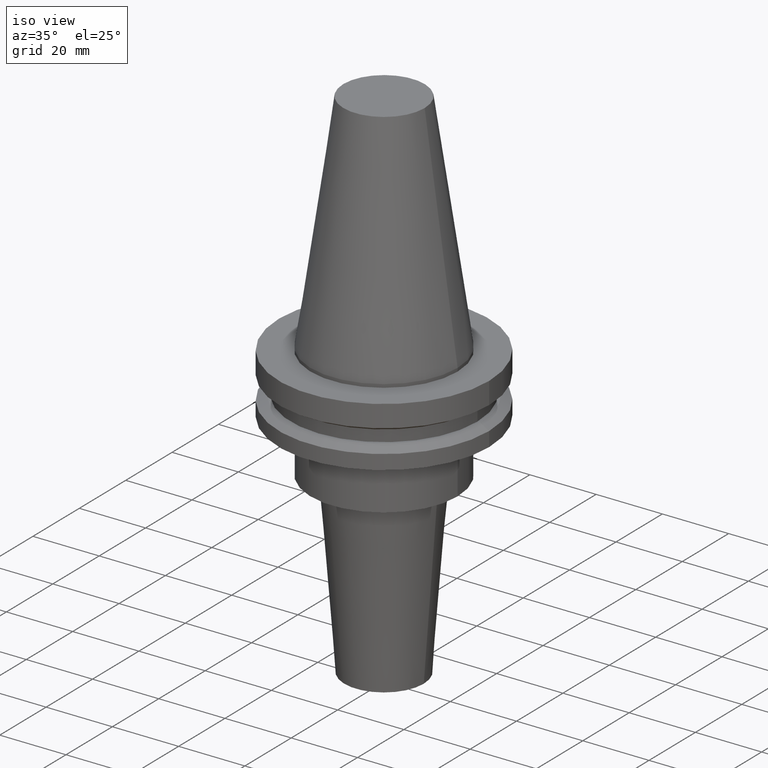
[diagram: clean part render]
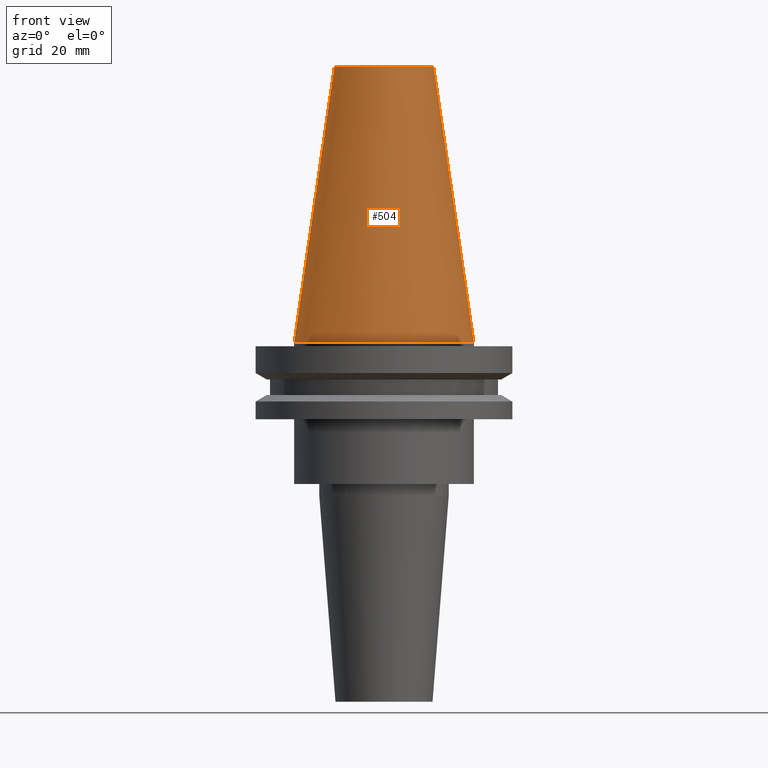
[diagram: tour spotlight — one face highlighted and labeled with its STEP entity id]
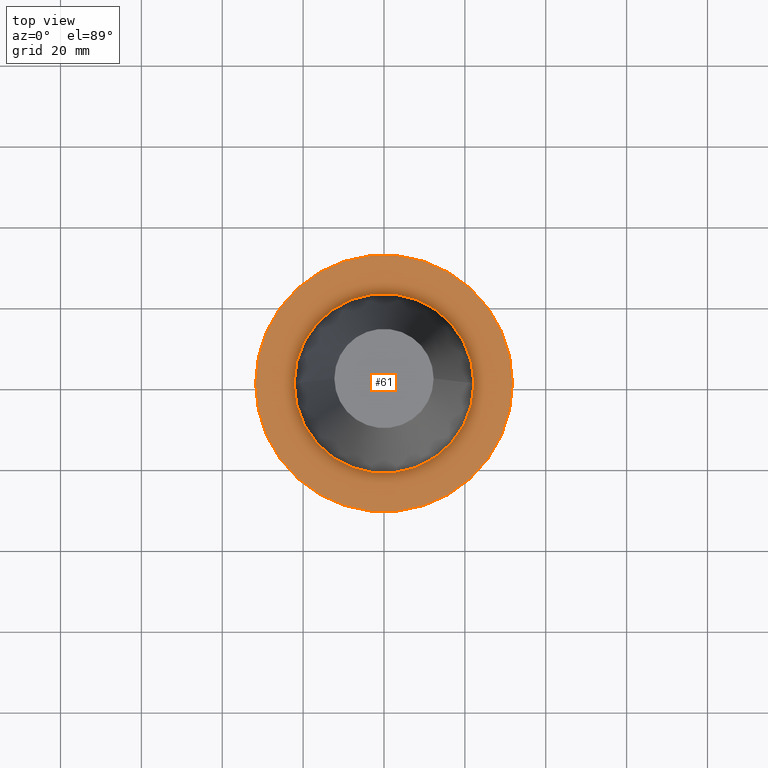
[diagram: tour spotlight — one face highlighted and labeled with its STEP entity id]
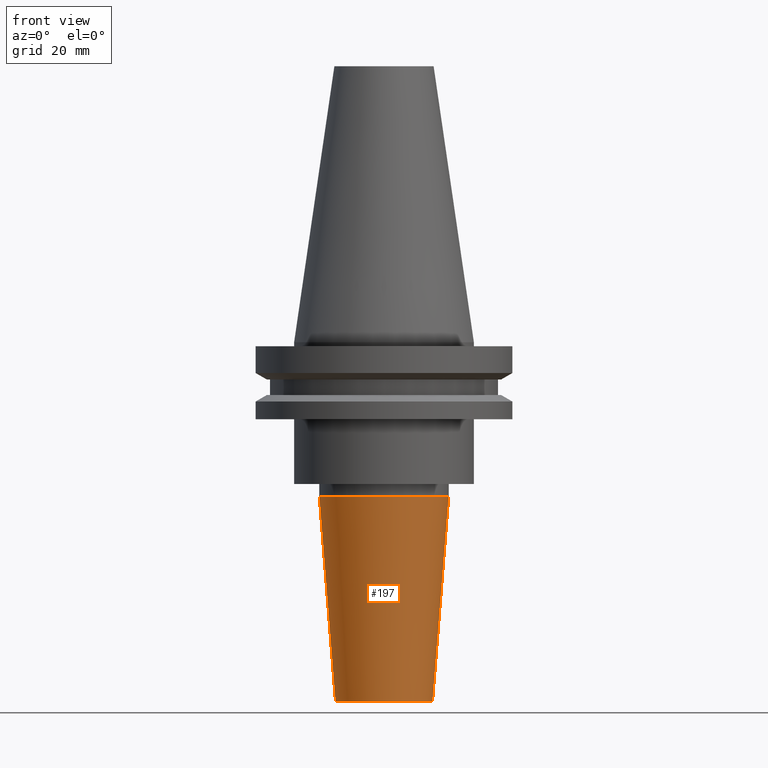
[diagram: tour spotlight — one face highlighted and labeled with its STEP entity id]
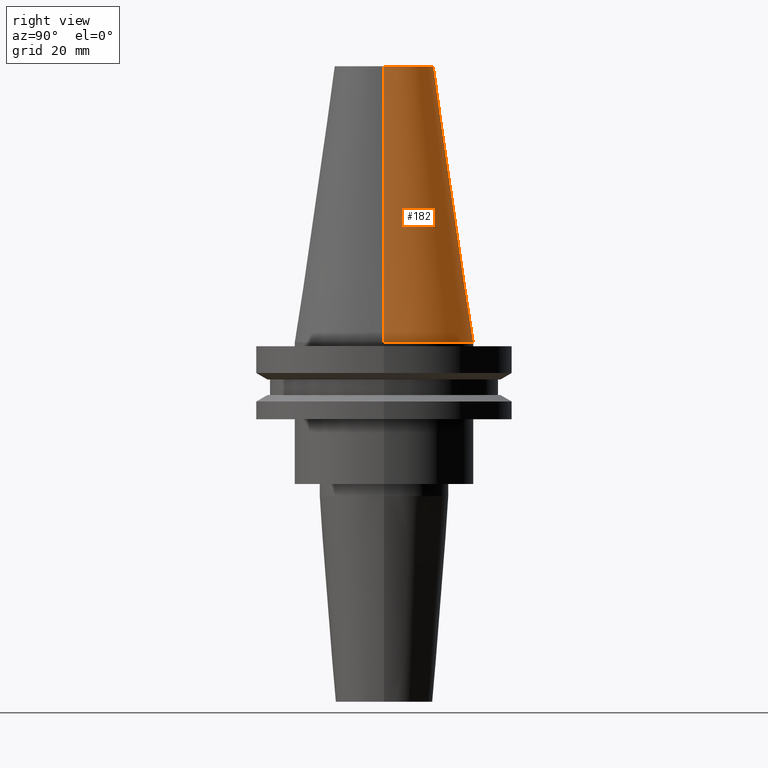
[diagram: tour spotlight — one face highlighted and labeled with its STEP entity id]
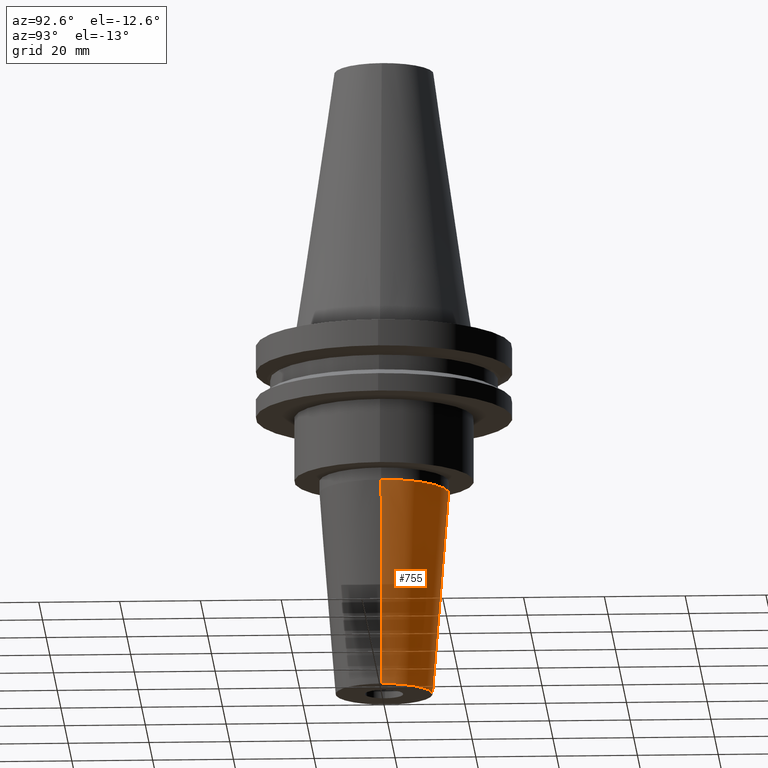
[diagram: tour spotlight — one face highlighted and labeled with its STEP entity id]
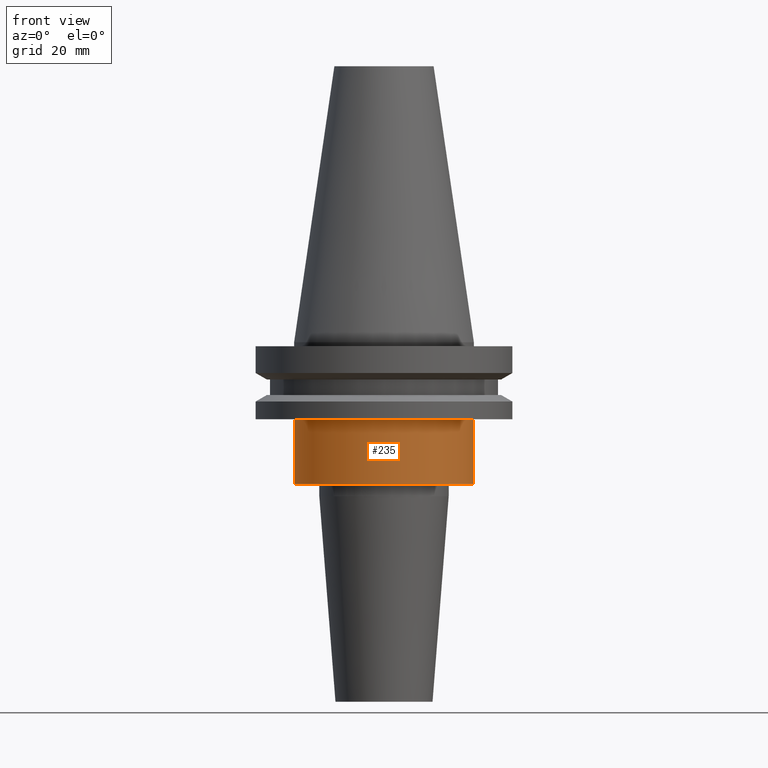
[diagram: tour spotlight — one face highlighted and labeled with its STEP entity id]
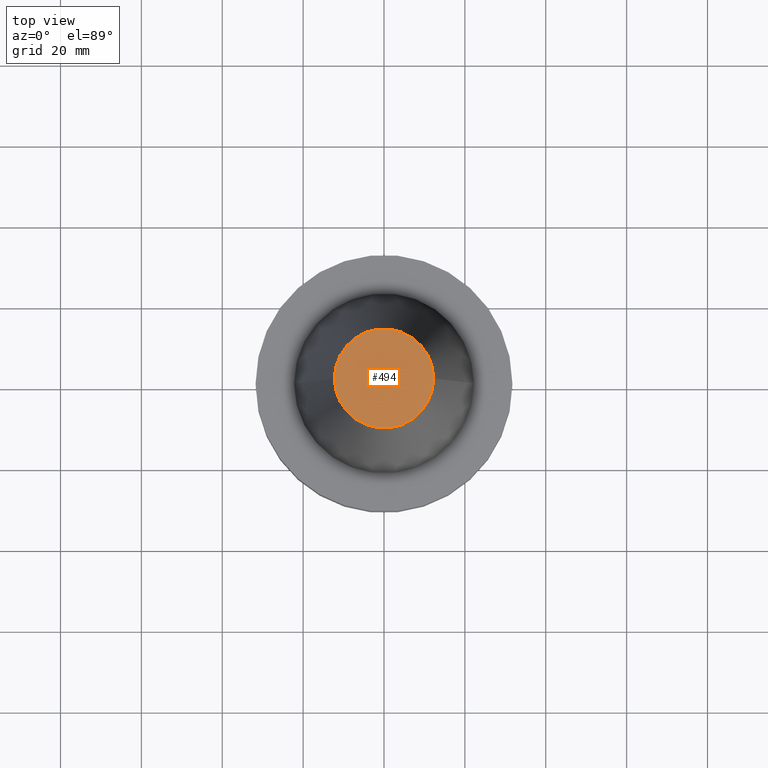
[diagram: tour spotlight — one face highlighted and labeled with its STEP entity id]
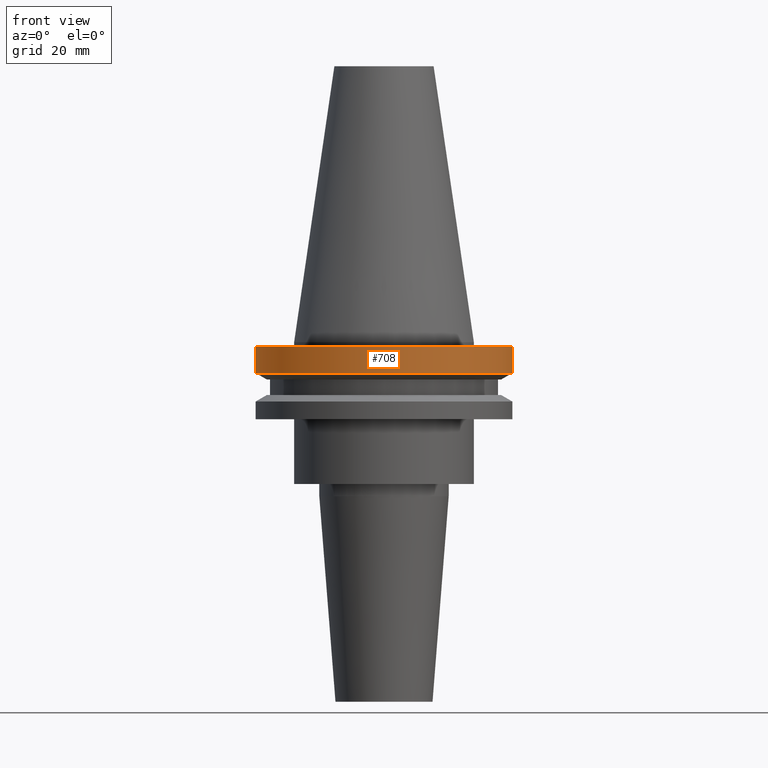
[diagram: tour spotlight — one face highlighted and labeled with its STEP entity id]
A machine part: a face-by-face anatomy tour. The part has 30 B-rep faces; the first image is the clean iso view, then the 8 largest visible faces are spotlighted one at a time (largest first), each with its STEP entity span.

Face 1 — front view, entity #504. In plain terms, the highlighted conical surface has half-angle 8.297 deg.
Definition (entity closure, byte-faithful):
#16 = ORIENTED_EDGE ( 'NONE', *, *, #608, .F. ) ;
#55 = AXIS2_PLACEMENT_3D ( 'NONE', #151, #303, #703 ) ;
#64 = CARTESIAN_POINT ( 'NONE',  ( 0.000000000000000000, 0.000000000000000000, 0.000000000000000000 ) ) ;
#68 = DIRECTION ( 'NONE',  ( -0.000000000000000000, -0.000000000000000000, 1.000000000000000000 ) ) ;
#87 = DIRECTION ( 'NONE',  ( 1.000000000000000000, 0.000000000000000000, 0.000000000000000000 ) ) ;
#139 = DIRECTION ( 'NONE',  ( -1.000000000000000000, 0.000000000000000000, 0.000000000000000000 ) ) ;
#151 = CARTESIAN_POINT ( 'NONE',  ( 0.000000000000000000, 0.000000000000000000, 68.25000000000000000 ) ) ;
#165 = EDGE_CURVE ( 'NONE', #814, #261, #429, .T. ) ;
#184 = ORIENTED_EDGE ( 'NONE', *, *, #832, .T. ) ;
#185 = AXIS2_PLACEMENT_3D ( 'NONE', #337, #542, #139 ) ;
#198 = CARTESIAN_POINT ( 'NONE',  ( -12.27178102086201150, 0.000000000000000000, 68.25000000000000000 ) ) ;
#210 = EDGE_CURVE ( 'NONE', #814, #342, #686, .T. ) ;
#231 = CONICAL_SURFACE ( 'NONE', #185, 22.22500000000000142, 0.1448138465474119174 ) ;
#236 = LINE ( 'NONE', #619, #797 ) ;
#261 = VERTEX_POINT ( 'NONE', #823 ) ;
#286 = EDGE_LOOP ( 'NONE', ( #16, #443, #381, #184 ) ) ;
#302 = DIRECTION ( 'NONE',  ( 0.1443082272672999711, 1.767266086135276757E-17, -0.9895327864921755756 ) ) ;
#303 = DIRECTION ( 'NONE',  ( -0.000000000000000000, -0.000000000000000000, 1.000000000000000000 ) ) ;
#308 = CARTESIAN_POINT ( 'NONE',  ( -22.22500000000000142, 0.000000000000000000, 0.000000000000000000 ) ) ;
#337 = CARTESIAN_POINT ( 'NONE',  ( 0.000000000000000000, 0.000000000000000000, 0.000000000000000000 ) ) ;
#342 = VERTEX_POINT ( 'NONE', #846 ) ;
#381 = ORIENTED_EDGE ( 'NONE', *, *, #210, .T. ) ;
#424 = CARTESIAN_POINT ( 'NONE',  ( 22.22500000000000142, 2.721777511104992849E-15, 0.000000000000000000 ) ) ;
#429 = CIRCLE ( 'NONE', #55, 12.27178102086201150 ) ;
#443 = ORIENTED_EDGE ( 'NONE', *, *, #165, .F. ) ;
#504 = ADVANCED_FACE ( 'NONE', ( #726 ), #231, .T. ) ;
#528 = AXIS2_PLACEMENT_3D ( 'NONE', #64, #68, #87 ) ;
#542 = DIRECTION ( 'NONE',  ( 0.000000000000000000, 0.000000000000000000, -1.000000000000000000 ) ) ;
#608 = EDGE_CURVE ( 'NONE', #261, #669, #236, .T. ) ;
#619 = CARTESIAN_POINT ( 'NONE',  ( 22.22500000000000142, 2.721777511104992849E-15, 0.000000000000000000 ) ) ;
#638 = DIRECTION ( 'NONE',  ( -0.1443082272672999711, 0.000000000000000000, -0.9895327864921755756 ) ) ;
#669 = VERTEX_POINT ( 'NONE', #424 ) ;
#686 = LINE ( 'NONE', #308, #781 ) ;
#703 = DIRECTION ( 'NONE',  ( 1.000000000000000000, 0.000000000000000000, 0.000000000000000000 ) ) ;
#726 = FACE_OUTER_BOUND ( 'NONE', #286, .T. ) ;
#781 = VECTOR ( 'NONE', #638, 999.9999999999998863 ) ;
#797 = VECTOR ( 'NONE', #302, 999.9999999999998863 ) ;
#814 = VERTEX_POINT ( 'NONE', #198 ) ;
#823 = CARTESIAN_POINT ( 'NONE',  ( 12.27178102086201150, 2.112318622904291439E-15, 68.25000000000000000 ) ) ;
#832 = EDGE_CURVE ( 'NONE', #342, #669, #842, .T. ) ;
#842 = CIRCLE ( 'NONE', #528, 22.22500000000000142 ) ;
#846 = CARTESIAN_POINT ( 'NONE',  ( -22.22500000000000142, 0.000000000000000000, 0.000000000000000000 ) ) ;

Face 2 — top view, entity #61. In plain terms, the highlighted planar face has unit normal (0, 0, -1).
Definition (entity closure, byte-faithful):
#12 = CIRCLE ( 'NONE', #123, 31.75000000000000000 ) ;
#19 = DIRECTION ( 'NONE',  ( 1.000000000000000000, 0.000000000000000000, 0.000000000000000000 ) ) ;
#31 = EDGE_CURVE ( 'NONE', #502, #784, #108, .T. ) ;
#46 = ORIENTED_EDGE ( 'NONE', *, *, #31, .F. ) ;
#61 = ADVANCED_FACE ( 'NONE', ( #333, #130 ), #676, .F. ) ;
#69 = AXIS2_PLACEMENT_3D ( 'NONE', #599, #464, #19 ) ;
#79 = CARTESIAN_POINT ( 'NONE',  ( -22.22500000000000142, 2.721777511104992849E-15, -1.000000000000000888 ) ) ;
#93 = DIRECTION ( 'NONE',  ( -0.000000000000000000, -0.000000000000000000, 1.000000000000000000 ) ) ;
#99 = VERTEX_POINT ( 'NONE', #480 ) ;
#108 = CIRCLE ( 'NONE', #69, 22.22500000000000142 ) ;
#123 = AXIS2_PLACEMENT_3D ( 'NONE', #490, #292, #573 ) ;
#126 = CARTESIAN_POINT ( 'NONE',  ( 0.000000000000000000, 0.000000000000000000, -1.000000000000000888 ) ) ;
#130 = FACE_OUTER_BOUND ( 'NONE', #683, .T. ) ;
#135 = ORIENTED_EDGE ( 'NONE', *, *, #594, .F. ) ;
#137 = CARTESIAN_POINT ( 'NONE',  ( -31.75000000000000000, 3.888253587292846476E-15, -1.000000000000000888 ) ) ;
#149 = ORIENTED_EDGE ( 'NONE', *, *, #288, .T. ) ;
#174 = CARTESIAN_POINT ( 'NONE',  ( 22.22500000000000142, 0.000000000000000000, -1.000000000000000888 ) ) ;
#288 = EDGE_CURVE ( 'NONE', #539, #99, #368, .T. ) ;
#291 = EDGE_LOOP ( 'NONE', ( #135, #46 ) ) ;
#292 = DIRECTION ( 'NONE',  ( -0.000000000000000000, -0.000000000000000000, 1.000000000000000000 ) ) ;
#326 = ORIENTED_EDGE ( 'NONE', *, *, #665, .T. ) ;
#333 = FACE_BOUND ( 'NONE', #291, .T. ) ;
#368 = CIRCLE ( 'NONE', #612, 31.75000000000000000 ) ;
#374 = DIRECTION ( 'NONE',  ( 1.000000000000000000, 0.000000000000000000, 0.000000000000000000 ) ) ;
#464 = DIRECTION ( 'NONE',  ( -0.000000000000000000, -0.000000000000000000, 1.000000000000000000 ) ) ;
#480 = CARTESIAN_POINT ( 'NONE',  ( 31.75000000000000000, 0.000000000000000000, -1.000000000000000888 ) ) ;
#486 = CIRCLE ( 'NONE', #541, 22.22500000000000142 ) ;
#490 = CARTESIAN_POINT ( 'NONE',  ( 0.000000000000000000, 0.000000000000000000, -1.000000000000000888 ) ) ;
#502 = VERTEX_POINT ( 'NONE', #79 ) ;
#539 = VERTEX_POINT ( 'NONE', #137 ) ;
#541 = AXIS2_PLACEMENT_3D ( 'NONE', #816, #93, #374 ) ;
#573 = DIRECTION ( 'NONE',  ( 1.000000000000000000, 0.000000000000000000, 0.000000000000000000 ) ) ;
#594 = EDGE_CURVE ( 'NONE', #784, #502, #486, .T. ) ;
#599 = CARTESIAN_POINT ( 'NONE',  ( 0.000000000000000000, 0.000000000000000000, -1.000000000000000888 ) ) ;
#602 = CARTESIAN_POINT ( 'NONE',  ( 0.000000000000000000, 31.75000000000000000, -0.9999999999999995559 ) ) ;
#612 = AXIS2_PLACEMENT_3D ( 'NONE', #126, #655, #712 ) ;
#655 = DIRECTION ( 'NONE',  ( -0.000000000000000000, -0.000000000000000000, 1.000000000000000000 ) ) ;
#665 = EDGE_CURVE ( 'NONE', #99, #539, #12, .T. ) ;
#673 = DIRECTION ( 'NONE',  ( 0.000000000000000000, 0.000000000000000000, -1.000000000000000000 ) ) ;
#676 = PLANE ( 'NONE',  #705 ) ;
#683 = EDGE_LOOP ( 'NONE', ( #326, #149 ) ) ;
#705 = AXIS2_PLACEMENT_3D ( 'NONE', #602, #673, #741 ) ;
#712 = DIRECTION ( 'NONE',  ( 1.000000000000000000, 0.000000000000000000, 0.000000000000000000 ) ) ;
#741 = DIRECTION ( 'NONE',  ( -1.000000000000000000, 0.000000000000000000, -0.000000000000000000 ) ) ;
#784 = VERTEX_POINT ( 'NONE', #174 ) ;
#816 = CARTESIAN_POINT ( 'NONE',  ( 0.000000000000000000, 0.000000000000000000, -1.000000000000000888 ) ) ;

Face 3 — front view, entity #197. In plain terms, the highlighted conical surface has half-angle 4.5 deg.
Definition (entity closure, byte-faithful):
#14 = LINE ( 'NONE', #468, #513 ) ;
#62 = DIRECTION ( 'NONE',  ( 1.000000000000000000, 0.000000000000000000, 0.000000000000000000 ) ) ;
#86 = VERTEX_POINT ( 'NONE', #401 ) ;
#114 = CIRCLE ( 'NONE', #335, 12.00000000000000000 ) ;
#128 = EDGE_CURVE ( 'NONE', #86, #219, #14, .T. ) ;
#131 = CONICAL_SURFACE ( 'NONE', #278, 12.00000000000000000, 0.07853981633973657062 ) ;
#153 = VERTEX_POINT ( 'NONE', #564 ) ;
#161 = CARTESIAN_POINT ( 'NONE',  ( -16.00000000000000000, 1.959434878635765131E-15, -38.07518105529580055 ) ) ;
#175 = DIRECTION ( 'NONE',  ( -0.000000000000000000, -0.000000000000000000, 1.000000000000000000 ) ) ;
#193 = ORIENTED_EDGE ( 'NONE', *, *, #417, .F. ) ;
#197 = ADVANCED_FACE ( 'NONE', ( #491 ), #131, .T. ) ;
#202 = ORIENTED_EDGE ( 'NONE', *, *, #411, .T. ) ;
#219 = VERTEX_POINT ( 'NONE', #161 ) ;
#260 = CARTESIAN_POINT ( 'NONE',  ( 12.00000000000000000, 0.000000000000000000, -88.89999999999999147 ) ) ;
#278 = AXIS2_PLACEMENT_3D ( 'NONE', #487, #626, #689 ) ;
#321 = LINE ( 'NONE', #260, #774 ) ;
#323 = EDGE_CURVE ( 'NONE', #86, #153, #114, .T. ) ;
#335 = AXIS2_PLACEMENT_3D ( 'NONE', #458, #175, #62 ) ;
#345 = DIRECTION ( 'NONE',  ( -0.07845909572783671404, 9.608468044709101226E-18, 0.9969173337331286300 ) ) ;
#350 = AXIS2_PLACEMENT_3D ( 'NONE', #449, #444, #510 ) ;
#401 = CARTESIAN_POINT ( 'NONE',  ( -12.00000000000000000, 1.714505518806294638E-15, -88.89999999999999147 ) ) ;
#411 = EDGE_CURVE ( 'NONE', #153, #819, #321, .T. ) ;
#417 = EDGE_CURVE ( 'NONE', #219, #819, #506, .T. ) ;
#444 = DIRECTION ( 'NONE',  ( -0.000000000000000000, -0.000000000000000000, 1.000000000000000000 ) ) ;
#449 = CARTESIAN_POINT ( 'NONE',  ( 0.000000000000000000, 0.000000000000000000, -38.07518105529580055 ) ) ;
#458 = CARTESIAN_POINT ( 'NONE',  ( 0.000000000000000000, 0.000000000000000000, -88.89999999999999147 ) ) ;
#468 = CARTESIAN_POINT ( 'NONE',  ( -12.00000000000000000, 1.469576158976823947E-15, -88.89999999999999147 ) ) ;
#487 = CARTESIAN_POINT ( 'NONE',  ( 0.000000000000000000, 0.000000000000000000, -88.89999999999999147 ) ) ;
#491 = FACE_OUTER_BOUND ( 'NONE', #769, .T. ) ;
#506 = CIRCLE ( 'NONE', #350, 16.00000000000000000 ) ;
#510 = DIRECTION ( 'NONE',  ( 1.000000000000000000, 0.000000000000000000, 0.000000000000000000 ) ) ;
#513 = VECTOR ( 'NONE', #345, 1000.000000000000000 ) ;
#514 = DIRECTION ( 'NONE',  ( 0.07845909572783671404, 0.000000000000000000, 0.9969173337331286300 ) ) ;
#564 = CARTESIAN_POINT ( 'NONE',  ( 12.00000000000000000, 0.000000000000000000, -88.89999999999999147 ) ) ;
#626 = DIRECTION ( 'NONE',  ( -0.000000000000000000, -0.000000000000000000, 1.000000000000000000 ) ) ;
#649 = ORIENTED_EDGE ( 'NONE', *, *, #128, .F. ) ;
#689 = DIRECTION ( 'NONE',  ( 1.000000000000000000, 0.000000000000000000, 0.000000000000000000 ) ) ;
#719 = CARTESIAN_POINT ( 'NONE',  ( 16.00000000000000000, 0.000000000000000000, -38.07518105529580055 ) ) ;
#769 = EDGE_LOOP ( 'NONE', ( #649, #779, #202, #193 ) ) ;
#774 = VECTOR ( 'NONE', #514, 1000.000000000000000 ) ;
#779 = ORIENTED_EDGE ( 'NONE', *, *, #323, .T. ) ;
#819 = VERTEX_POINT ( 'NONE', #719 ) ;

Face 4 — right view, entity #182. In plain terms, the highlighted conical surface has half-angle 8.297 deg.
Definition (entity closure, byte-faithful):
#4 = ORIENTED_EDGE ( 'NONE', *, *, #646, .T. ) ;
#39 = DIRECTION ( 'NONE',  ( 1.000000000000000000, 0.000000000000000000, 0.000000000000000000 ) ) ;
#106 = CARTESIAN_POINT ( 'NONE',  ( 0.000000000000000000, 0.000000000000000000, 68.25000000000000000 ) ) ;
#143 = CIRCLE ( 'NONE', #262, 12.27178102086201150 ) ;
#182 = ADVANCED_FACE ( 'NONE', ( #362 ), #402, .T. ) ;
#198 = CARTESIAN_POINT ( 'NONE',  ( -12.27178102086201150, 0.000000000000000000, 68.25000000000000000 ) ) ;
#210 = EDGE_CURVE ( 'NONE', #814, #342, #686, .T. ) ;
#222 = CARTESIAN_POINT ( 'NONE',  ( 0.000000000000000000, 0.000000000000000000, 0.000000000000000000 ) ) ;
#236 = LINE ( 'NONE', #619, #797 ) ;
#237 = DIRECTION ( 'NONE',  ( -0.000000000000000000, -0.000000000000000000, 1.000000000000000000 ) ) ;
#261 = VERTEX_POINT ( 'NONE', #823 ) ;
#262 = AXIS2_PLACEMENT_3D ( 'NONE', #106, #237, #39 ) ;
#266 = EDGE_CURVE ( 'NONE', #261, #814, #143, .T. ) ;
#293 = DIRECTION ( 'NONE',  ( -1.000000000000000000, 0.000000000000000000, 0.000000000000000000 ) ) ;
#296 = DIRECTION ( 'NONE',  ( -0.000000000000000000, -0.000000000000000000, 1.000000000000000000 ) ) ;
#302 = DIRECTION ( 'NONE',  ( 0.1443082272672999711, 1.767266086135276757E-17, -0.9895327864921755756 ) ) ;
#308 = CARTESIAN_POINT ( 'NONE',  ( -22.22500000000000142, 0.000000000000000000, 0.000000000000000000 ) ) ;
#334 = ORIENTED_EDGE ( 'NONE', *, *, #266, .F. ) ;
#342 = VERTEX_POINT ( 'NONE', #846 ) ;
#344 = CIRCLE ( 'NONE', #855, 22.22500000000000142 ) ;
#362 = FACE_OUTER_BOUND ( 'NONE', #550, .T. ) ;
#402 = CONICAL_SURFACE ( 'NONE', #483, 22.22500000000000142, 0.1448138465474119174 ) ;
#424 = CARTESIAN_POINT ( 'NONE',  ( 22.22500000000000142, 2.721777511104992849E-15, 0.000000000000000000 ) ) ;
#483 = AXIS2_PLACEMENT_3D ( 'NONE', #580, #633, #293 ) ;
#493 = ORIENTED_EDGE ( 'NONE', *, *, #608, .T. ) ;
#550 = EDGE_LOOP ( 'NONE', ( #334, #493, #4, #787 ) ) ;
#567 = DIRECTION ( 'NONE',  ( 1.000000000000000000, 0.000000000000000000, 0.000000000000000000 ) ) ;
#580 = CARTESIAN_POINT ( 'NONE',  ( 0.000000000000000000, 0.000000000000000000, 0.000000000000000000 ) ) ;
#608 = EDGE_CURVE ( 'NONE', #261, #669, #236, .T. ) ;
#619 = CARTESIAN_POINT ( 'NONE',  ( 22.22500000000000142, 2.721777511104992849E-15, 0.000000000000000000 ) ) ;
#633 = DIRECTION ( 'NONE',  ( 0.000000000000000000, 0.000000000000000000, -1.000000000000000000 ) ) ;
#638 = DIRECTION ( 'NONE',  ( -0.1443082272672999711, 0.000000000000000000, -0.9895327864921755756 ) ) ;
#646 = EDGE_CURVE ( 'NONE', #669, #342, #344, .T. ) ;
#669 = VERTEX_POINT ( 'NONE', #424 ) ;
#686 = LINE ( 'NONE', #308, #781 ) ;
#781 = VECTOR ( 'NONE', #638, 999.9999999999998863 ) ;
#787 = ORIENTED_EDGE ( 'NONE', *, *, #210, .F. ) ;
#797 = VECTOR ( 'NONE', #302, 999.9999999999998863 ) ;
#814 = VERTEX_POINT ( 'NONE', #198 ) ;
#823 = CARTESIAN_POINT ( 'NONE',  ( 12.27178102086201150, 2.112318622904291439E-15, 68.25000000000000000 ) ) ;
#846 = CARTESIAN_POINT ( 'NONE',  ( -22.22500000000000142, 0.000000000000000000, 0.000000000000000000 ) ) ;
#855 = AXIS2_PLACEMENT_3D ( 'NONE', #222, #296, #567 ) ;

Face 5 — auxiliary view, entity #755. In plain terms, the highlighted conical surface has half-angle 4.5 deg.
Definition (entity closure, byte-faithful):
#14 = LINE ( 'NONE', #468, #513 ) ;
#22 = AXIS2_PLACEMENT_3D ( 'NONE', #370, #28, #299 ) ;
#28 = DIRECTION ( 'NONE',  ( -0.000000000000000000, -0.000000000000000000, 1.000000000000000000 ) ) ;
#66 = CARTESIAN_POINT ( 'NONE',  ( 0.000000000000000000, 0.000000000000000000, -88.89999999999999147 ) ) ;
#86 = VERTEX_POINT ( 'NONE', #401 ) ;
#116 = ORIENTED_EDGE ( 'NONE', *, *, #190, .F. ) ;
#118 = CARTESIAN_POINT ( 'NONE',  ( 0.000000000000000000, 0.000000000000000000, -88.89999999999999147 ) ) ;
#128 = EDGE_CURVE ( 'NONE', #86, #219, #14, .T. ) ;
#150 = FACE_OUTER_BOUND ( 'NONE', #700, .T. ) ;
#153 = VERTEX_POINT ( 'NONE', #564 ) ;
#161 = CARTESIAN_POINT ( 'NONE',  ( -16.00000000000000000, 1.959434878635765131E-15, -38.07518105529580055 ) ) ;
#190 = EDGE_CURVE ( 'NONE', #819, #219, #572, .T. ) ;
#205 = CONICAL_SURFACE ( 'NONE', #827, 12.00000000000000000, 0.07853981633973657062 ) ;
#219 = VERTEX_POINT ( 'NONE', #161 ) ;
#249 = DIRECTION ( 'NONE',  ( -0.000000000000000000, -0.000000000000000000, 1.000000000000000000 ) ) ;
#260 = CARTESIAN_POINT ( 'NONE',  ( 12.00000000000000000, 0.000000000000000000, -88.89999999999999147 ) ) ;
#267 = ORIENTED_EDGE ( 'NONE', *, *, #411, .F. ) ;
#299 = DIRECTION ( 'NONE',  ( 1.000000000000000000, 0.000000000000000000, 0.000000000000000000 ) ) ;
#304 = ORIENTED_EDGE ( 'NONE', *, *, #432, .T. ) ;
#321 = LINE ( 'NONE', #260, #774 ) ;
#328 = DIRECTION ( 'NONE',  ( 1.000000000000000000, 0.000000000000000000, 0.000000000000000000 ) ) ;
#345 = DIRECTION ( 'NONE',  ( -0.07845909572783671404, 9.608468044709101226E-18, 0.9969173337331286300 ) ) ;
#370 = CARTESIAN_POINT ( 'NONE',  ( 0.000000000000000000, 0.000000000000000000, -38.07518105529580055 ) ) ;
#385 = DIRECTION ( 'NONE',  ( -0.000000000000000000, -0.000000000000000000, 1.000000000000000000 ) ) ;
#397 = AXIS2_PLACEMENT_3D ( 'NONE', #66, #385, #328 ) ;
#401 = CARTESIAN_POINT ( 'NONE',  ( -12.00000000000000000, 1.714505518806294638E-15, -88.89999999999999147 ) ) ;
#411 = EDGE_CURVE ( 'NONE', #153, #819, #321, .T. ) ;
#432 = EDGE_CURVE ( 'NONE', #153, #86, #546, .T. ) ;
#468 = CARTESIAN_POINT ( 'NONE',  ( -12.00000000000000000, 1.469576158976823947E-15, -88.89999999999999147 ) ) ;
#482 = ORIENTED_EDGE ( 'NONE', *, *, #128, .T. ) ;
#513 = VECTOR ( 'NONE', #345, 1000.000000000000000 ) ;
#514 = DIRECTION ( 'NONE',  ( 0.07845909572783671404, 0.000000000000000000, 0.9969173337331286300 ) ) ;
#546 = CIRCLE ( 'NONE', #397, 12.00000000000000000 ) ;
#564 = CARTESIAN_POINT ( 'NONE',  ( 12.00000000000000000, 0.000000000000000000, -88.89999999999999147 ) ) ;
#572 = CIRCLE ( 'NONE', #22, 16.00000000000000000 ) ;
#700 = EDGE_LOOP ( 'NONE', ( #304, #482, #116, #267 ) ) ;
#714 = DIRECTION ( 'NONE',  ( 1.000000000000000000, 0.000000000000000000, 0.000000000000000000 ) ) ;
#719 = CARTESIAN_POINT ( 'NONE',  ( 16.00000000000000000, 0.000000000000000000, -38.07518105529580055 ) ) ;
#755 = ADVANCED_FACE ( 'NONE', ( #150 ), #205, .T. ) ;
#774 = VECTOR ( 'NONE', #514, 1000.000000000000000 ) ;
#819 = VERTEX_POINT ( 'NONE', #719 ) ;
#827 = AXIS2_PLACEMENT_3D ( 'NONE', #118, #249, #714 ) ;

Face 6 — front view, entity #235. In plain terms, the highlighted cylindrical surface (partial cylindrical patch) has radius 22.225 mm, axis along (-0, -0, 1).
Definition (entity closure, byte-faithful):
#45 = FACE_OUTER_BOUND ( 'NONE', #452, .T. ) ;
#50 = VERTEX_POINT ( 'NONE', #534 ) ;
#56 = CIRCLE ( 'NONE', #540, 22.22500000000000142 ) ;
#98 = CARTESIAN_POINT ( 'NONE',  ( -22.22500000000000142, 2.721777511104992849E-15, 68.25000000000000000 ) ) ;
#101 = DIRECTION ( 'NONE',  ( 1.000000000000000000, 0.000000000000000000, 0.000000000000000000 ) ) ;
#156 = CARTESIAN_POINT ( 'NONE',  ( -22.22499999999999787, 2.721777511104992454E-15, -35.04999999999999716 ) ) ;
#158 = ORIENTED_EDGE ( 'NONE', *, *, #848, .T. ) ;
#188 = VECTOR ( 'NONE', #375, 1000.000000000000000 ) ;
#216 = VERTEX_POINT ( 'NONE', #433 ) ;
#235 = ADVANCED_FACE ( 'NONE', ( #45 ), #694, .T. ) ;
#251 = EDGE_CURVE ( 'NONE', #657, #216, #830, .T. ) ;
#283 = ORIENTED_EDGE ( 'NONE', *, *, #682, .T. ) ;
#289 = DIRECTION ( 'NONE',  ( -0.000000000000000000, -0.000000000000000000, 1.000000000000000000 ) ) ;
#307 = AXIS2_PLACEMENT_3D ( 'NONE', #356, #748, #441 ) ;
#327 = LINE ( 'NONE', #532, #363 ) ;
#356 = CARTESIAN_POINT ( 'NONE',  ( 0.000000000000000000, 0.000000000000000000, 68.25000000000000000 ) ) ;
#363 = VECTOR ( 'NONE', #597, 1000.000000000000000 ) ;
#375 = DIRECTION ( 'NONE',  ( -0.000000000000000000, -0.000000000000000000, 1.000000000000000000 ) ) ;
#422 = DIRECTION ( 'NONE',  ( -0.000000000000000000, -0.000000000000000000, 1.000000000000000000 ) ) ;
#426 = VERTEX_POINT ( 'NONE', #589 ) ;
#433 = CARTESIAN_POINT ( 'NONE',  ( -22.22500000000000142, 2.721777511104992849E-15, -19.04999999999999716 ) ) ;
#441 = DIRECTION ( 'NONE',  ( 1.000000000000000000, 0.000000000000000000, 0.000000000000000000 ) ) ;
#452 = EDGE_LOOP ( 'NONE', ( #613, #283, #158, #766 ) ) ;
#532 = CARTESIAN_POINT ( 'NONE',  ( 22.22500000000000142, 0.000000000000000000, 68.25000000000000000 ) ) ;
#534 = CARTESIAN_POINT ( 'NONE',  ( 22.22499999999999787, 0.000000000000000000, -35.04999999999999716 ) ) ;
#540 = AXIS2_PLACEMENT_3D ( 'NONE', #811, #422, #677 ) ;
#589 = CARTESIAN_POINT ( 'NONE',  ( 22.22500000000000142, 0.000000000000000000, -19.04999999999999716 ) ) ;
#597 = DIRECTION ( 'NONE',  ( -0.000000000000000000, -0.000000000000000000, 1.000000000000000000 ) ) ;
#613 = ORIENTED_EDGE ( 'NONE', *, *, #251, .F. ) ;
#625 = CARTESIAN_POINT ( 'NONE',  ( 0.000000000000000000, 0.000000000000000000, -35.04999999999999716 ) ) ;
#657 = VERTEX_POINT ( 'NONE', #156 ) ;
#677 = DIRECTION ( 'NONE',  ( 1.000000000000000000, 0.000000000000000000, 0.000000000000000000 ) ) ;
#682 = EDGE_CURVE ( 'NONE', #657, #50, #785, .T. ) ;
#694 = CYLINDRICAL_SURFACE ( 'NONE', #307, 22.22500000000000142 ) ;
#748 = DIRECTION ( 'NONE',  ( -0.000000000000000000, -0.000000000000000000, 1.000000000000000000 ) ) ;
#766 = ORIENTED_EDGE ( 'NONE', *, *, #818, .F. ) ;
#785 = CIRCLE ( 'NONE', #828, 22.22499999999999787 ) ;
#811 = CARTESIAN_POINT ( 'NONE',  ( 0.000000000000000000, 0.000000000000000000, -19.04999999999999716 ) ) ;
#818 = EDGE_CURVE ( 'NONE', #216, #426, #56, .T. ) ;
#828 = AXIS2_PLACEMENT_3D ( 'NONE', #625, #289, #101 ) ;
#830 = LINE ( 'NONE', #98, #188 ) ;
#848 = EDGE_CURVE ( 'NONE', #50, #426, #327, .T. ) ;

Face 7 — top view, entity #494. In plain terms, the highlighted planar face has unit normal (0, 0, -1).
Definition (entity closure, byte-faithful):
#39 = DIRECTION ( 'NONE',  ( 1.000000000000000000, 0.000000000000000000, 0.000000000000000000 ) ) ;
#55 = AXIS2_PLACEMENT_3D ( 'NONE', #151, #303, #703 ) ;
#84 = PLANE ( 'NONE',  #833 ) ;
#106 = CARTESIAN_POINT ( 'NONE',  ( 0.000000000000000000, 0.000000000000000000, 68.25000000000000000 ) ) ;
#143 = CIRCLE ( 'NONE', #262, 12.27178102086201150 ) ;
#151 = CARTESIAN_POINT ( 'NONE',  ( 0.000000000000000000, 0.000000000000000000, 68.25000000000000000 ) ) ;
#165 = EDGE_CURVE ( 'NONE', #814, #261, #429, .T. ) ;
#198 = CARTESIAN_POINT ( 'NONE',  ( -12.27178102086201150, 0.000000000000000000, 68.25000000000000000 ) ) ;
#214 = DIRECTION ( 'NONE',  ( 0.000000000000000000, 0.000000000000000000, -1.000000000000000000 ) ) ;
#237 = DIRECTION ( 'NONE',  ( -0.000000000000000000, -0.000000000000000000, 1.000000000000000000 ) ) ;
#261 = VERTEX_POINT ( 'NONE', #823 ) ;
#262 = AXIS2_PLACEMENT_3D ( 'NONE', #106, #237, #39 ) ;
#266 = EDGE_CURVE ( 'NONE', #261, #814, #143, .T. ) ;
#273 = CARTESIAN_POINT ( 'NONE',  ( 0.000000000000000000, 12.27178102086201150, 68.25000000000000000 ) ) ;
#303 = DIRECTION ( 'NONE',  ( -0.000000000000000000, -0.000000000000000000, 1.000000000000000000 ) ) ;
#429 = CIRCLE ( 'NONE', #55, 12.27178102086201150 ) ;
#476 = ORIENTED_EDGE ( 'NONE', *, *, #266, .T. ) ;
#494 = ADVANCED_FACE ( 'NONE', ( #662 ), #84, .F. ) ;
#662 = FACE_OUTER_BOUND ( 'NONE', #835, .T. ) ;
#680 = DIRECTION ( 'NONE',  ( -1.000000000000000000, 0.000000000000000000, -0.000000000000000000 ) ) ;
#703 = DIRECTION ( 'NONE',  ( 1.000000000000000000, 0.000000000000000000, 0.000000000000000000 ) ) ;
#814 = VERTEX_POINT ( 'NONE', #198 ) ;
#823 = CARTESIAN_POINT ( 'NONE',  ( 12.27178102086201150, 2.112318622904291439E-15, 68.25000000000000000 ) ) ;
#833 = AXIS2_PLACEMENT_3D ( 'NONE', #273, #214, #680 ) ;
#835 = EDGE_LOOP ( 'NONE', ( #847, #476 ) ) ;
#847 = ORIENTED_EDGE ( 'NONE', *, *, #165, .T. ) ;

Face 8 — front view, entity #708. In plain terms, the highlighted cylindrical surface (partial cylindrical patch) has radius 31.75 mm, axis along (-0, -0, 1).
Definition (entity closure, byte-faithful):
#99 = VERTEX_POINT ( 'NONE', #480 ) ;
#126 = CARTESIAN_POINT ( 'NONE',  ( 0.000000000000000000, 0.000000000000000000, -1.000000000000000888 ) ) ;
#137 = CARTESIAN_POINT ( 'NONE',  ( -31.75000000000000000, 3.888253587292846476E-15, -1.000000000000000888 ) ) ;
#176 = EDGE_LOOP ( 'NONE', ( #271, #717, #309, #300 ) ) ;
#179 = CARTESIAN_POINT ( 'NONE',  ( 31.75000000000000000, 0.000000000000000000, -7.605276606597335842 ) ) ;
#189 = AXIS2_PLACEMENT_3D ( 'NONE', #747, #361, #812 ) ;
#191 = VECTOR ( 'NONE', #200, 1000.000000000000000 ) ;
#200 = DIRECTION ( 'NONE',  ( -0.000000000000000000, -0.000000000000000000, 1.000000000000000000 ) ) ;
#213 = EDGE_CURVE ( 'NONE', #776, #99, #496, .T. ) ;
#271 = ORIENTED_EDGE ( 'NONE', *, *, #561, .F. ) ;
#288 = EDGE_CURVE ( 'NONE', #539, #99, #368, .T. ) ;
#300 = ORIENTED_EDGE ( 'NONE', *, *, #288, .F. ) ;
#309 = ORIENTED_EDGE ( 'NONE', *, *, #213, .T. ) ;
#322 = CIRCLE ( 'NONE', #763, 31.75000000000000000 ) ;
#332 = CARTESIAN_POINT ( 'NONE',  ( -31.75000000000000000, 3.888253587292846476E-15, 68.25000000000000000 ) ) ;
#359 = VECTOR ( 'NONE', #752, 1000.000000000000000 ) ;
#361 = DIRECTION ( 'NONE',  ( -0.000000000000000000, -0.000000000000000000, 1.000000000000000000 ) ) ;
#368 = CIRCLE ( 'NONE', #612, 31.75000000000000000 ) ;
#410 = DIRECTION ( 'NONE',  ( -0.000000000000000000, -0.000000000000000000, 1.000000000000000000 ) ) ;
#467 = CARTESIAN_POINT ( 'NONE',  ( 0.000000000000000000, 0.000000000000000000, -7.605276606597335842 ) ) ;
#475 = LINE ( 'NONE', #332, #191 ) ;
#480 = CARTESIAN_POINT ( 'NONE',  ( 31.75000000000000000, 0.000000000000000000, -1.000000000000000888 ) ) ;
#492 = EDGE_CURVE ( 'NONE', #590, #776, #322, .T. ) ;
#496 = LINE ( 'NONE', #813, #359 ) ;
#533 = CARTESIAN_POINT ( 'NONE',  ( -31.75000000000000000, 3.888253587292846476E-15, -7.605276606597335842 ) ) ;
#539 = VERTEX_POINT ( 'NONE', #137 ) ;
#548 = DIRECTION ( 'NONE',  ( 1.000000000000000000, 0.000000000000000000, 0.000000000000000000 ) ) ;
#561 = EDGE_CURVE ( 'NONE', #590, #539, #475, .T. ) ;
#590 = VERTEX_POINT ( 'NONE', #533 ) ;
#612 = AXIS2_PLACEMENT_3D ( 'NONE', #126, #655, #712 ) ;
#655 = DIRECTION ( 'NONE',  ( -0.000000000000000000, -0.000000000000000000, 1.000000000000000000 ) ) ;
#698 = CYLINDRICAL_SURFACE ( 'NONE', #189, 31.75000000000000000 ) ;
#708 = ADVANCED_FACE ( 'NONE', ( #758 ), #698, .T. ) ;
#712 = DIRECTION ( 'NONE',  ( 1.000000000000000000, 0.000000000000000000, 0.000000000000000000 ) ) ;
#717 = ORIENTED_EDGE ( 'NONE', *, *, #492, .T. ) ;
#747 = CARTESIAN_POINT ( 'NONE',  ( 0.000000000000000000, 0.000000000000000000, 68.25000000000000000 ) ) ;
#752 = DIRECTION ( 'NONE',  ( -0.000000000000000000, -0.000000000000000000, 1.000000000000000000 ) ) ;
#758 = FACE_OUTER_BOUND ( 'NONE', #176, .T. ) ;
#763 = AXIS2_PLACEMENT_3D ( 'NONE', #467, #410, #548 ) ;
#776 = VERTEX_POINT ( 'NONE', #179 ) ;
#812 = DIRECTION ( 'NONE',  ( 1.000000000000000000, 0.000000000000000000, 0.000000000000000000 ) ) ;
#813 = CARTESIAN_POINT ( 'NONE',  ( 31.75000000000000000, 0.000000000000000000, 68.25000000000000000 ) ) ;